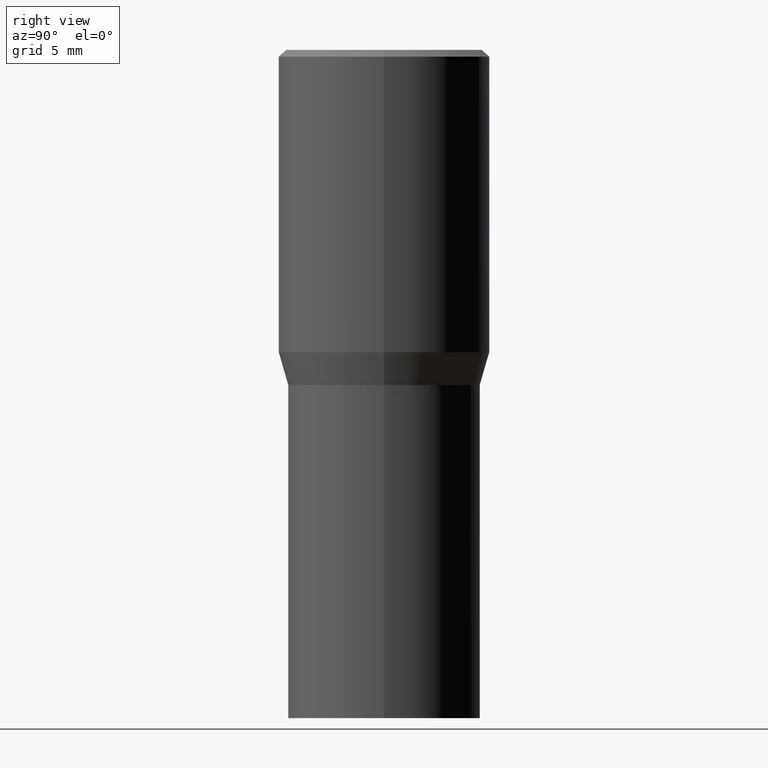
[diagram: clean part render]
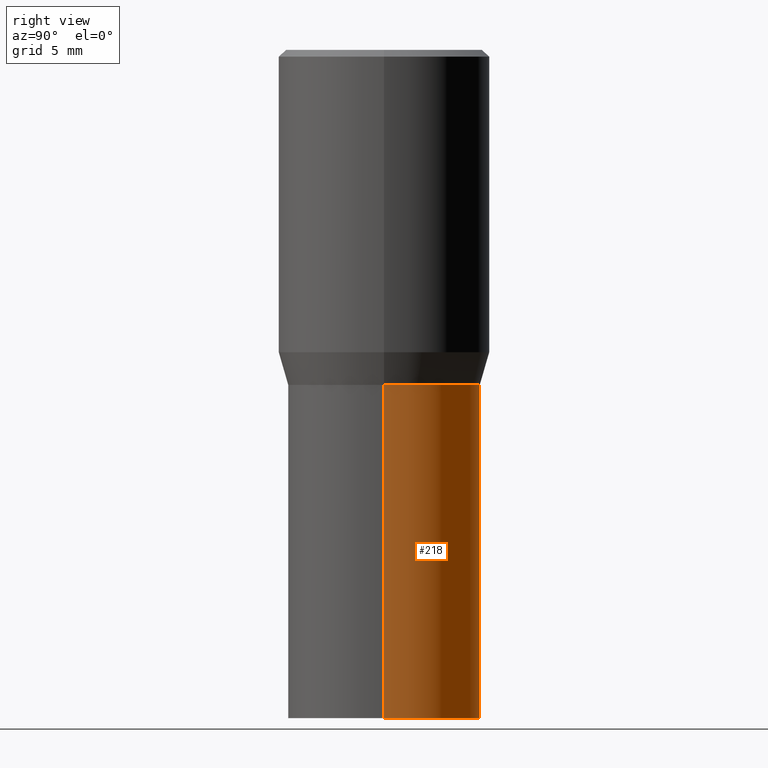
[diagram: same view with one face highlighted and labeled with its STEP entity id]
A machine part, right view. The second image highlights one B-rep face of the part: STEP entity #218.
In plain terms, the highlighted cylindrical surface (partial cylindrical patch) has radius 5.5004 mm, axis along (-0, 0, 1).
Its self-contained STEP definition (entity closure, byte-faithful):
#16 = DIRECTION ( 'NONE',  ( -2.445468806185136597E-29, 3.491481338843145583E-15, 1.000000000000000000 ) ) ;
#26 = FACE_OUTER_BOUND ( 'NONE', #357, .T. ) ;
#77 = EDGE_CURVE ( 'NONE', #308, #270, #232, .T. ) ;
#106 = LINE ( 'NONE', #462, #114 ) ;
#114 = VECTOR ( 'NONE', #432, 39.37007874015748143 ) ;
#116 = ORIENTED_EDGE ( 'NONE', *, *, #77, .F. ) ;
#127 = DIRECTION ( 'NONE',  ( 1.000000000000000000, -6.982962677686264344E-15, 0.000000000000000000 ) ) ;
#152 = CARTESIAN_POINT ( 'NONE',  ( -0.2165500000000000203, 1.538680294288497096E-15, -1.065195393794699923E-29 ) ) ;
#162 = DIRECTION ( 'NONE',  ( -2.445468806185136597E-29, 3.491481338843145583E-15, 1.000000000000000000 ) ) ;
#171 = AXIS2_PLACEMENT_3D ( 'NONE', #338, #16, #389 ) ;
#177 = ORIENTED_EDGE ( 'NONE', *, *, #228, .F. ) ;
#179 = CARTESIAN_POINT ( 'NONE',  ( 1.838992542251222813E-29, -2.625593966810045497E-15, -0.7520000000000001128 ) ) ;
#180 = DIRECTION ( 'NONE',  ( -2.445468806185136597E-29, 3.491481338843145583E-15, 1.000000000000000000 ) ) ;
#193 = AXIS2_PLACEMENT_3D ( 'NONE', #179, #180, #465 ) ;
#209 = ORIENTED_EDGE ( 'NONE', *, *, #315, .T. ) ;
#218 = ADVANCED_FACE ( 'NONE', ( #26 ), #454, .T. ) ;
#220 = DIRECTION ( 'NONE',  ( -2.445468806185136877E-29, 3.491481338843145188E-15, 1.000000000000000000 ) ) ;
#228 = EDGE_CURVE ( 'NONE', #424, #308, #106, .T. ) ;
#232 = CIRCLE ( 'NONE', #193, 0.2165500000000000203 ) ;
#257 = AXIS2_PLACEMENT_3D ( 'NONE', #341, #162, #127 ) ;
#270 = VERTEX_POINT ( 'NONE', #324 ) ;
#287 = VECTOR ( 'NONE', #220, 39.37007874015748143 ) ;
#308 = VERTEX_POINT ( 'NONE', #344 ) ;
#313 = CIRCLE ( 'NONE', #257, 0.2165500000000000203 ) ;
#315 = EDGE_CURVE ( 'NONE', #424, #411, #313, .T. ) ;
#324 = CARTESIAN_POINT ( 'NONE',  ( -0.2165500000000000203, -2.392727693248884740E-15, -0.7520000000000001128 ) ) ;
#337 = CARTESIAN_POINT ( 'NONE',  ( -0.2165500000000000203, -2.392727693248884740E-15, -1.500000000000000222 ) ) ;
#338 = CARTESIAN_POINT ( 'NONE',  ( 0.000000000000000000, 0.000000000000000000, 0.000000000000000000 ) ) ;
#341 = CARTESIAN_POINT ( 'NONE',  ( 3.668203209277704895E-29, -5.237222008264718177E-15, -1.500000000000000222 ) ) ;
#344 = CARTESIAN_POINT ( 'NONE',  ( 0.2165500000000000203, -4.137754534663007109E-15, -0.7520000000000001128 ) ) ;
#352 = ORIENTED_EDGE ( 'NONE', *, *, #421, .T. ) ;
#357 = EDGE_LOOP ( 'NONE', ( #209, #352, #116, #177 ) ) ;
#379 = LINE ( 'NONE', #152, #287 ) ;
#389 = DIRECTION ( 'NONE',  ( 1.000000000000000000, -6.982962677686266711E-15, 4.876176775795935793E-29 ) ) ;
#411 = VERTEX_POINT ( 'NONE', #337 ) ;
#421 = EDGE_CURVE ( 'NONE', #411, #270, #379, .T. ) ;
#424 = VERTEX_POINT ( 'NONE', #428 ) ;
#428 = CARTESIAN_POINT ( 'NONE',  ( 0.2165500000000000203, -6.749382576117678999E-15, -1.500000000000000222 ) ) ;
#432 = DIRECTION ( 'NONE',  ( -2.445468806185136877E-29, 3.491481338843145188E-15, 1.000000000000000000 ) ) ;
#454 = CYLINDRICAL_SURFACE ( 'NONE', #171, 0.2165500000000000203 ) ;
#462 = CARTESIAN_POINT ( 'NONE',  ( 0.2165500000000000203, -1.512160567852961217E-15, 1.055936080798610036E-29 ) ) ;
#465 = DIRECTION ( 'NONE',  ( 1.000000000000000000, -6.982962677686266711E-15, 0.000000000000000000 ) ) ;